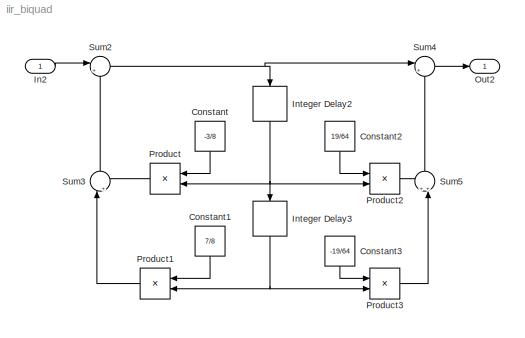
MODEL iir_biquad
KIND model
BLOCK [Constant] Constant
  OutDataTypeStr = fixdt(1,32,24)
  SID = 46
  Value = -3/8
BLOCK [Constant] Constant1
  OutDataTypeStr = fixdt(1,32,24)
  SID = 47
  Value = 7/8
BLOCK [Constant] Constant2
  OutDataTypeStr = fixdt(1,32,24)
  SID = 48
  Value = 19/64
BLOCK [Constant] Constant3
  OutDataTypeStr = fixdt(1,32,24)
  SID = 49
  Value = -19/64
BLOCK [Inport] In2
  IconDisplay = Port number
  SID = 62
BLOCK [Delay] Integer Delay2
  DelayLength = 1
  InputPortMap = u0
  Ports = [1, 1]
  SID = 50
  SampleTime = 2
BLOCK [Delay] Integer Delay3
  DelayLength = 1
  InputPortMap = u0
  Ports = [1, 1]
  SID = 51
  SampleTime = 2
BLOCK [Outport] Out2
  IconDisplay = Port number
  SID = 63
BLOCK [Product] Product
  InputSameDT = off
  OutDataTypeStr = fixdt(1,32,28)
  Ports = [2, 1]
  SID = 52
  SaturateOnIntegerOverflow = off
BLOCK [Product] Product1
  InputSameDT = off
  OutDataTypeStr = fixdt(1,32,28)
  Ports = [2, 1]
  SID = 53
  SaturateOnIntegerOverflow = off
BLOCK [Product] Product2
  InputSameDT = off
  OutDataTypeStr = fixdt(1,32,28)
  Ports = [2, 1]
  SID = 54
  SaturateOnIntegerOverflow = off
BLOCK [Product] Product3
  InputSameDT = off
  OutDataTypeStr = fixdt(1,32,28)
  Ports = [2, 1]
  SID = 55
  SaturateOnIntegerOverflow = off
BLOCK [Sum] Sum2
  AccumDataTypeStr = fixdt(1,32,28)
  IconShape = round
  InputSameDT = off
  Inputs = |++
  OutDataTypeStr = fixdt(1,32,28)
  Ports = [2, 1]
  SID = 56
  SaturateOnIntegerOverflow = off
BLOCK [Sum] Sum3
  AccumDataTypeStr = fixdt(1,32,28)
  IconShape = round
  InputSameDT = off
  Inputs = |++
  OutDataTypeStr = fixdt(1,32,28)
  Ports = [2, 1]
  SID = 57
  SaturateOnIntegerOverflow = off
BLOCK [Sum] Sum4
  AccumDataTypeStr = fixdt(1,32,28)
  IconShape = round
  InputSameDT = off
  Inputs = |++
  OutDataTypeStr = fixdt(1,32,28)
  Ports = [2, 1]
  SID = 58
  SaturateOnIntegerOverflow = off
BLOCK [Sum] Sum5
  AccumDataTypeStr = fixdt(1,32,28)
  IconShape = round
  InputSameDT = off
  Inputs = ++|
  OutDataTypeStr = fixdt(1,32,28)
  Ports = [2, 1]
  SID = 59
  SaturateOnIntegerOverflow = off
LINE Constant1:1 -> Product1:1
LINE Constant2:1 -> Product2:1
LINE Constant3:1 -> Product3:1
LINE Constant:1 -> Product:1
LINE In2:1 -> Sum2:1
NET Integer Delay2:1 -> Integer Delay3:1, Product2:2, Product:2
NET Integer Delay3:1 -> Product1:2, Product3:2
LINE Product1:1 -> Sum3:1
LINE Product2:1 -> Sum5:1
LINE Product3:1 -> Sum5:2
LINE Product:1 -> Sum3:2
NET Sum2:1 -> Integer Delay2:1, Sum4:1
LINE Sum3:1 -> Sum2:2
LINE Sum4:1 -> Out2:1
LINE Sum5:1 -> Sum4:2
note: NET lines group one-source signal fan-out (src -> all destinations, sorted); 1:1 wires keep LINE
